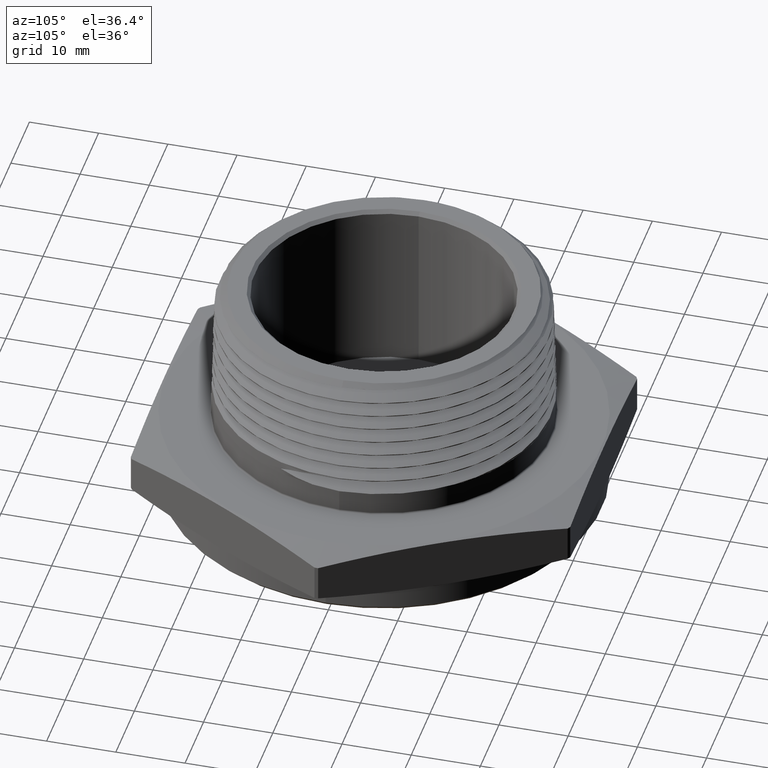
[diagram: clean part render]
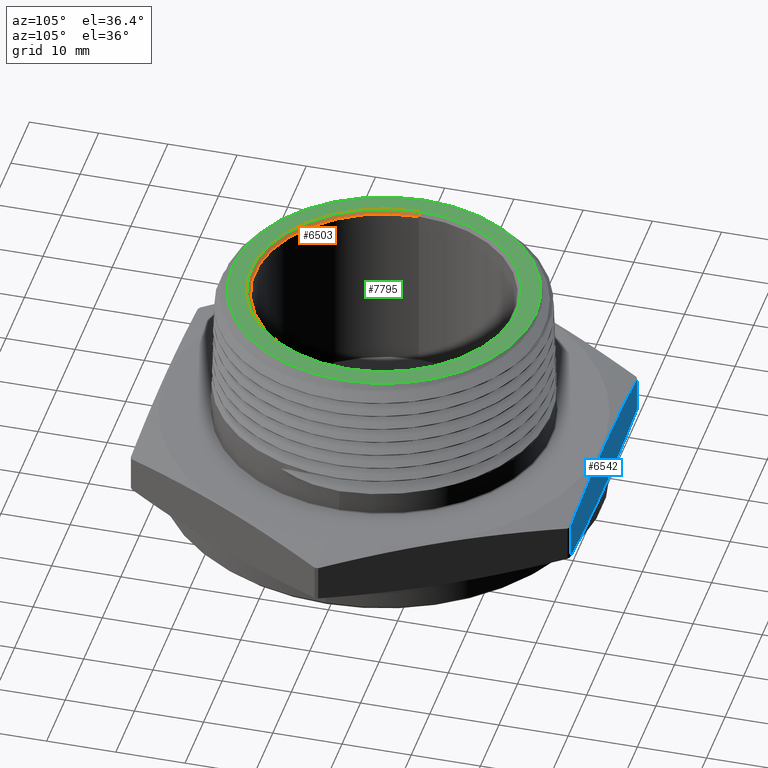
[diagram: same view with three faces highlighted in distinct colors, each labeled with its STEP entity id]
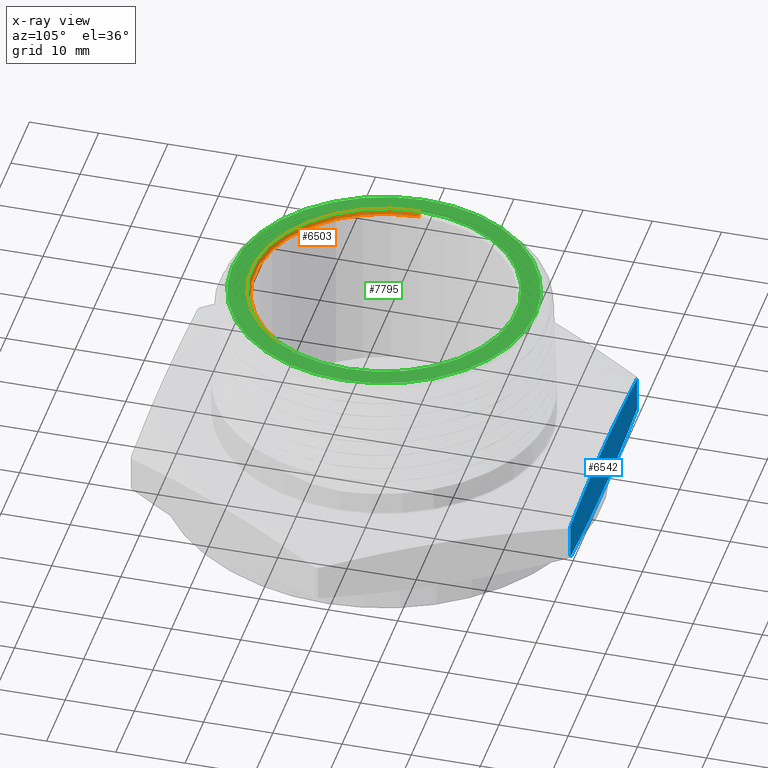
[diagram: x-ray of the same camera — body ghosted, the three highlighted faces saturated]
A machine part, auxiliary view with three faces highlighted in distinct colors.
The next image is the same camera in x-ray (body ghosted, the three faces saturated) — at least one of them is partly hidden behind the body in this view.
Their STEP definitions:

[orange] entity #6503 — the highlighted conical surface has half-angle 45 deg.
#600 = FACE_OUTER_BOUND ( 'NONE', #6498, .T. ) ;
#602 = CONICAL_SURFACE ( 'NONE', #7721, 0.7349999999999997600, 0.7853981633974482800 ) ;
#691 = LINE ( 'NONE', #6454, #695 ) ;
#693 = CIRCLE ( 'NONE', #7768, 0.7549999999999998900 ) ;
#695 = VECTOR ( 'NONE', #6455, 39.37007874015748100 ) ;
#696 = CIRCLE ( 'NONE', #7770, 0.7349999999999997600 ) ;
#697 = LINE ( 'NONE', #6440, #699 ) ;
#699 = VECTOR ( 'NONE', #6432, 39.37007874015748100 ) ;
#3858 = ORIENTED_EDGE ( 'NONE', *, *, #7564, .F. ) ;
#3859 = ORIENTED_EDGE ( 'NONE', *, *, #7563, .T. ) ;
#3860 = ORIENTED_EDGE ( 'NONE', *, *, #7560, .T. ) ;
#3861 = ORIENTED_EDGE ( 'NONE', *, *, #7559, .F. ) ;
#6023 = VERTEX_POINT ( 'NONE', #6786 ) ;
#6027 = VERTEX_POINT ( 'NONE', #6822 ) ;
#6028 = VERTEX_POINT ( 'NONE', #6811 ) ;
#6029 = VERTEX_POINT ( 'NONE', #6815 ) ;
#6427 = DIRECTION ( 'NONE',  ( 1.000000000000000000, 0.0000000000000000000, 0.0000000000000000000 ) ) ;
#6428 = DIRECTION ( 'NONE',  ( -2.307956700049595900E-032, -0.0000000000000000000, 1.000000000000000000 ) ) ;
#6429 = CARTESIAN_POINT ( 'NONE',  ( 1.224646799147323500E-018, 0.0000000000000000000, 1.100000000000000100 ) ) ;
#6432 = DIRECTION ( 'NONE',  ( -0.7071067811865474600, 8.659560562354931600E-017, 0.7071067811865475700 ) ) ;
#6440 = CARTESIAN_POINT ( 'NONE',  ( -0.7349999999999997600, 9.001153973733043400E-017, 1.100000000000000100 ) ) ;
#6446 = DIRECTION ( 'NONE',  ( 1.000000000000000000, 0.0000000000000000000, 0.0000000000000000000 ) ) ;
#6447 = DIRECTION ( 'NONE',  ( -2.307956700049595900E-032, -0.0000000000000000000, 1.000000000000000000 ) ) ;
#6448 = CARTESIAN_POINT ( 'NONE',  ( 1.224646799147323000E-018, 0.0000000000000000000, 1.120000000000000100 ) ) ;
#6454 = CARTESIAN_POINT ( 'NONE',  ( 0.7349999999999997600, 0.0000000000000000000, 1.100000000000000100 ) ) ;
#6455 = DIRECTION ( 'NONE',  ( 0.7071067811865474600, 0.0000000000000000000, 0.7071067811865475700 ) ) ;
#6498 = EDGE_LOOP ( 'NONE', ( #3858, #3859, #3860, #3861 ) ) ;
#6503 = ADVANCED_FACE ( 'NONE', ( #600 ), #602, .F. ) ;
#6700 = DIRECTION ( 'NONE',  ( -2.307956700049595900E-032, -0.0000000000000000000, 1.000000000000000000 ) ) ;
#6701 = CARTESIAN_POINT ( 'NONE',  ( 1.224646799147323500E-018, 0.0000000000000000000, 1.100000000000000100 ) ) ;
#6704 = DIRECTION ( 'NONE',  ( 1.000000000000000000, 0.0000000000000000000, 0.0000000000000000000 ) ) ;
#6786 = CARTESIAN_POINT ( 'NONE',  ( 0.7549999999999998900, 0.0000000000000000000, 1.120000000000000100 ) ) ;
#6811 = CARTESIAN_POINT ( 'NONE',  ( -0.7349999999999997600, 9.001153973733043400E-017, 1.100000000000000100 ) ) ;
#6815 = CARTESIAN_POINT ( 'NONE',  ( 0.7349999999999997600, 0.0000000000000000000, 1.100000000000000100 ) ) ;
#6822 = CARTESIAN_POINT ( 'NONE',  ( -0.7549999999999998900, 9.246083333562516000E-017, 1.120000000000000100 ) ) ;
#7559 = EDGE_CURVE ( 'NONE', #6029, #6023, #691, .T. ) ;
#7560 = EDGE_CURVE ( 'NONE', #6027, #6023, #693, .T. ) ;
#7563 = EDGE_CURVE ( 'NONE', #6028, #6027, #697, .T. ) ;
#7564 = EDGE_CURVE ( 'NONE', #6028, #6029, #696, .T. ) ;
#7721 = AXIS2_PLACEMENT_3D ( 'NONE', #6701, #6700, #6704 ) ;
#7768 = AXIS2_PLACEMENT_3D ( 'NONE', #6448, #6447, #6446 ) ;
#7770 = AXIS2_PLACEMENT_3D ( 'NONE', #6429, #6428, #6427 ) ;

[blue] entity #6542 — the highlighted planar face has unit normal (0, -1, 0).
#32 = CARTESIAN_POINT ( 'NONE',  ( -0.7096117426153864000, 1.250000000000000000, 0.2480465055953273400 ) ) ;
#36 = CARTESIAN_POINT ( 'NONE',  ( -0.5914369464278115300, 1.249999999999999800, 0.2604473106845319200 ) ) ;
#40 = CARTESIAN_POINT ( 'NONE',  ( -0.4728121291848240700, 1.250000000000000000, 0.2705372615892945900 ) ) ;
#41 = CARTESIAN_POINT ( 'NONE',  ( -0.2359184263323641000, 1.250000000000000000, 0.2842708287924888800 ) ) ;
#42 = CARTESIAN_POINT ( 'NONE',  ( -0.1175444299483716900, 1.250000000000000000, 0.2878894341945629200 ) ) ;
#43 = CARTESIAN_POINT ( 'NONE',  ( 0.1190405607234314000, 1.250000000000000200, 0.2878593394144130500 ) ) ;
#44 = CARTESIAN_POINT ( 'NONE',  ( 0.2372515809196331600, 1.250000000000000000, 0.2842117943351167900 ) ) ;
#45 = CARTESIAN_POINT ( 'NONE',  ( 0.4735291881626639300, 1.250000000000000200, 0.2704772788097142800 ) ) ;
#46 = CARTESIAN_POINT ( 'NONE',  ( 0.5915966777893302300, 1.250000000000000000, 0.2604305490945419400 ) ) ;
#47 = CARTESIAN_POINT ( 'NONE',  ( 0.7096117426153864000, 1.250000000000000000, 0.2480465055953271200 ) ) ;
#236 = CARTESIAN_POINT ( 'NONE',  ( 0.7096117426153864000, 1.250000000000000000, 0.04195349440467256700 ) ) ;
#237 = CARTESIAN_POINT ( 'NONE',  ( 0.5915966777893311200, 1.250000000000000000, 0.02956945090545753600 ) ) ;
#242 = CARTESIAN_POINT ( 'NONE',  ( 0.4735291881626648700, 1.250000000000000000, 0.01952272119028524200 ) ) ;
#243 = CARTESIAN_POINT ( 'NONE',  ( 0.2372515809196339100, 1.250000000000000200, 0.005788205664882837400 ) ) ;
#244 = CARTESIAN_POINT ( 'NONE',  ( 0.1190405607234319300, 1.250000000000000200, 0.002140660585586466000 ) ) ;
#245 = CARTESIAN_POINT ( 'NONE',  ( -0.1175444299483713900, 1.250000000000000200, 0.002110565805436747300 ) ) ;
#246 = CARTESIAN_POINT ( 'NONE',  ( -0.2359184263323638200, 1.250000000000000000, 0.005729171207510702100 ) ) ;
#247 = CARTESIAN_POINT ( 'NONE',  ( -0.4728121291848238500, 1.250000000000000000, 0.01946273841070519200 ) ) ;
#248 = CARTESIAN_POINT ( 'NONE',  ( -0.5914369464278115300, 1.250000000000000200, 0.02955268931546780500 ) ) ;
#249 = CARTESIAN_POINT ( 'NONE',  ( -0.7096117426153864000, 1.250000000000000000, 0.04195349440467247000 ) ) ;
#658 = VECTOR ( 'NONE', #6556, 39.37007874015748100 ) ;
#661 = FACE_OUTER_BOUND ( 'NONE', #5290, .T. ) ;
#683 = LINE ( 'NONE', #6557, #658 ) ;
#809 = LINE ( 'NONE', #5948, #811 ) ;
#811 = VECTOR ( 'NONE', #5943, 39.37007874015748100 ) ;
#3102 = B_SPLINE_CURVE_WITH_KNOTS ( 'NONE', 3,
 ( #32, #36, #40, #41, #42, #43, #44, #45, #46, #47 ),
 .UNSPECIFIED., .F., .F.,
 ( 4, 2, 2, 2, 4 ),
 ( 0.03073386060152988300, 0.03978191689248866700, 0.04882997318344744300, 0.05787802947440622000, 0.06692608576536500400 ),
 .UNSPECIFIED. ) ;
#3108 = B_SPLINE_CURVE_WITH_KNOTS ( 'NONE', 3,
 ( #236, #237, #242, #243, #244, #245, #246, #247, #248, #249 ),
 .UNSPECIFIED., .F., .F.,
 ( 4, 2, 2, 2, 4 ),
 ( 0.06959552142423552900, 0.07863472606069604700, 0.08767393069715656600, 0.09671313533361708400, 0.1057523399700776200 ),
 .UNSPECIFIED. ) ;
#5290 = EDGE_LOOP ( 'NONE', ( #5963, #5962, #6100, #6189 ) ) ;
#5943 = DIRECTION ( 'NONE',  ( -1.254986547952384500E-016, -0.0000000000000000000, -1.000000000000000000 ) ) ;
#5948 = CARTESIAN_POINT ( 'NONE',  ( 0.7096117426153864000, 1.250000000000000000, -8.905531912513597900E-017 ) ) ;
#5962 = ORIENTED_EDGE ( 'NONE', *, *, #7552, .T. ) ;
#5963 = ORIENTED_EDGE ( 'NONE', *, *, #7597, .T. ) ;
#6024 = VERTEX_POINT ( 'NONE', #6813 ) ;
#6050 = VERTEX_POINT ( 'NONE', #6789 ) ;
#6053 = VERTEX_POINT ( 'NONE', #6784 ) ;
#6055 = VERTEX_POINT ( 'NONE', #6782 ) ;
#6100 = ORIENTED_EDGE ( 'NONE', *, *, #7578, .T. ) ;
#6189 = ORIENTED_EDGE ( 'NONE', *, *, #7683, .T. ) ;
#6542 = ADVANCED_FACE ( 'NONE', ( #661 ), #6585, .F. ) ;
#6556 = DIRECTION ( 'NONE',  ( 1.254986547952384500E-016, 0.0000000000000000000, 1.000000000000000000 ) ) ;
#6557 = CARTESIAN_POINT ( 'NONE',  ( -0.7096117426153864000, 1.250000000000000000, 8.905531912513597900E-017 ) ) ;
#6577 = DIRECTION ( 'NONE',  ( 0.0000000000000000000, -0.0000000000000000000, -1.000000000000000000 ) ) ;
#6578 = DIRECTION ( 'NONE',  ( 0.0000000000000000000, -1.000000000000000000, 0.0000000000000000000 ) ) ;
#6583 = CARTESIAN_POINT ( 'NONE',  ( 0.7216878364870315000, 1.250000000000000000, 0.2899999999999999800 ) ) ;
#6585 = PLANE ( 'NONE',  #7760 ) ;
#6782 = CARTESIAN_POINT ( 'NONE',  ( 0.7096117426153864000, 1.250000000000000000, 0.2480465055953271200 ) ) ;
#6784 = CARTESIAN_POINT ( 'NONE',  ( -0.7096117426153864000, 1.250000000000000000, 0.2480465055953273400 ) ) ;
#6789 = CARTESIAN_POINT ( 'NONE',  ( -0.7096117426153864000, 1.250000000000000000, 0.04195349440467247000 ) ) ;
#6813 = CARTESIAN_POINT ( 'NONE',  ( 0.7096117426153864000, 1.250000000000000000, 0.04195349440467256700 ) ) ;
#7552 = EDGE_CURVE ( 'NONE', #6050, #6053, #683, .T. ) ;
#7578 = EDGE_CURVE ( 'NONE', #6053, #6055, #3102, .T. ) ;
#7597 = EDGE_CURVE ( 'NONE', #6024, #6050, #3108, .T. ) ;
#7683 = EDGE_CURVE ( 'NONE', #6055, #6024, #809, .T. ) ;
#7760 = AXIS2_PLACEMENT_3D ( 'NONE', #6583, #6578, #6577 ) ;

[green] entity #7795 — the highlighted planar face has unit normal (0, 0, 1).
#693 = CIRCLE ( 'NONE', #7768, 0.7549999999999998900 ) ;
#775 = CIRCLE ( 'NONE', #7505, 0.8632499999999987400 ) ;
#794 = CIRCLE ( 'NONE', #7510, 0.7549999999999998900 ) ;
#796 = CIRCLE ( 'NONE', #7513, 0.8632499999999987400 ) ;
#857 = FACE_BOUND ( 'NONE', #5297, .T. ) ;
#867 = FACE_OUTER_BOUND ( 'NONE', #5292, .T. ) ;
#2392 = CARTESIAN_POINT ( 'NONE',  ( 0.0000000000000000000, 0.0000000000000000000, 1.120000000000000100 ) ) ;
#2393 = DIRECTION ( 'NONE',  ( -0.0000000000000000000, -0.0000000000000000000, -1.000000000000000000 ) ) ;
#2394 = DIRECTION ( 'NONE',  ( -1.000000000000000000, 0.0000000000000000000, 0.0000000000000000000 ) ) ;
#3068 = DIRECTION ( 'NONE',  ( 0.0000000000000000000, 0.0000000000000000000, 1.000000000000000000 ) ) ;
#3069 = CARTESIAN_POINT ( 'NONE',  ( 0.0000000000000000000, 0.0000000000000000000, 1.120000000000000100 ) ) ;
#3070 = PLANE ( 'NONE',  #7543 ) ;
#3072 = DIRECTION ( 'NONE',  ( 1.000000000000000000, 0.0000000000000000000, -0.0000000000000000000 ) ) ;
#5292 = EDGE_LOOP ( 'NONE', ( #6170, #6169 ) ) ;
#5297 = EDGE_LOOP ( 'NONE', ( #6171, #6168 ) ) ;
#5781 = CARTESIAN_POINT ( 'NONE',  ( 1.224646799147323000E-018, 0.0000000000000000000, 1.120000000000000100 ) ) ;
#5782 = DIRECTION ( 'NONE',  ( -2.307956700049595900E-032, -0.0000000000000000000, 1.000000000000000000 ) ) ;
#5783 = DIRECTION ( 'NONE',  ( 1.000000000000000000, 0.0000000000000000000, 0.0000000000000000000 ) ) ;
#5936 = CARTESIAN_POINT ( 'NONE',  ( 0.0000000000000000000, 0.0000000000000000000, 1.120000000000000100 ) ) ;
#5937 = DIRECTION ( 'NONE',  ( -0.0000000000000000000, -0.0000000000000000000, -1.000000000000000000 ) ) ;
#5938 = DIRECTION ( 'NONE',  ( -1.000000000000000000, 0.0000000000000000000, 0.0000000000000000000 ) ) ;
#6023 = VERTEX_POINT ( 'NONE', #6786 ) ;
#6027 = VERTEX_POINT ( 'NONE', #6822 ) ;
#6129 = VERTEX_POINT ( 'NONE', #6728 ) ;
#6168 = ORIENTED_EDGE ( 'NONE', *, *, #7560, .F. ) ;
#6169 = ORIENTED_EDGE ( 'NONE', *, *, #7675, .F. ) ;
#6170 = ORIENTED_EDGE ( 'NONE', *, *, #7636, .F. ) ;
#6171 = ORIENTED_EDGE ( 'NONE', *, *, #7666, .F. ) ;
#6195 = VERTEX_POINT ( 'NONE', #6713 ) ;
#6446 = DIRECTION ( 'NONE',  ( 1.000000000000000000, 0.0000000000000000000, 0.0000000000000000000 ) ) ;
#6447 = DIRECTION ( 'NONE',  ( -2.307956700049595900E-032, -0.0000000000000000000, 1.000000000000000000 ) ) ;
#6448 = CARTESIAN_POINT ( 'NONE',  ( 1.224646799147323000E-018, 0.0000000000000000000, 1.120000000000000100 ) ) ;
#6713 = CARTESIAN_POINT ( 'NONE',  ( -0.8632499999999987400, 0.0000000000000000000, 1.120000000000000100 ) ) ;
#6728 = CARTESIAN_POINT ( 'NONE',  ( 0.8632499999999987400, 1.091870887325554300E-016, 1.120000000000000100 ) ) ;
#6786 = CARTESIAN_POINT ( 'NONE',  ( 0.7549999999999998900, 0.0000000000000000000, 1.120000000000000100 ) ) ;
#6822 = CARTESIAN_POINT ( 'NONE',  ( -0.7549999999999998900, 9.246083333562516000E-017, 1.120000000000000100 ) ) ;
#7505 = AXIS2_PLACEMENT_3D ( 'NONE', #2392, #2393, #2394 ) ;
#7510 = AXIS2_PLACEMENT_3D ( 'NONE', #5781, #5782, #5783 ) ;
#7513 = AXIS2_PLACEMENT_3D ( 'NONE', #5936, #5937, #5938 ) ;
#7543 = AXIS2_PLACEMENT_3D ( 'NONE', #3069, #3068, #3072 ) ;
#7560 = EDGE_CURVE ( 'NONE', #6027, #6023, #693, .T. ) ;
#7636 = EDGE_CURVE ( 'NONE', #6195, #6129, #775, .T. ) ;
#7666 = EDGE_CURVE ( 'NONE', #6023, #6027, #794, .T. ) ;
#7675 = EDGE_CURVE ( 'NONE', #6129, #6195, #796, .T. ) ;
#7768 = AXIS2_PLACEMENT_3D ( 'NONE', #6448, #6447, #6446 ) ;
#7795 = ADVANCED_FACE ( 'NONE', ( #867, #857 ), #3070, .T. ) ;